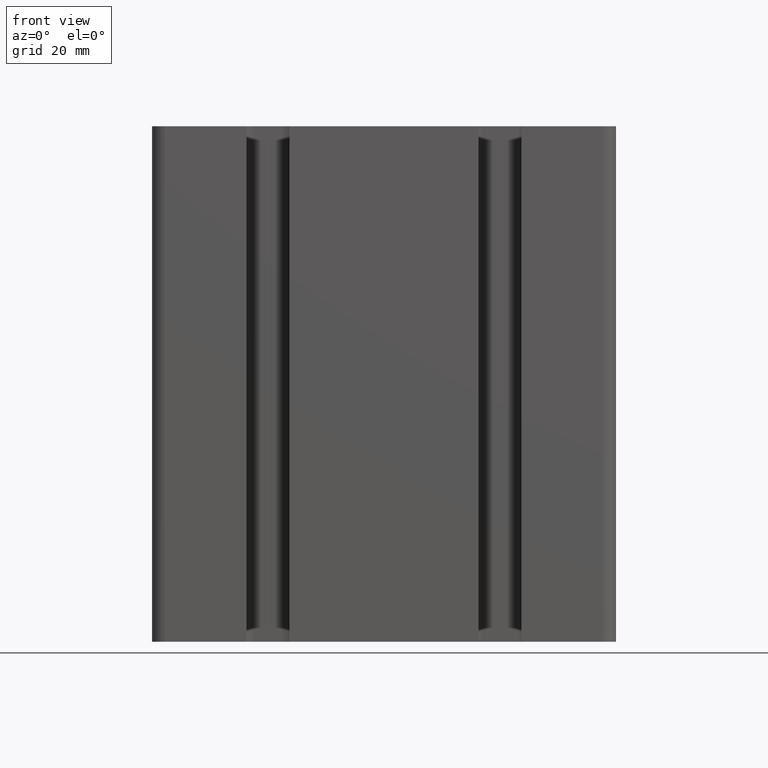
[diagram: clean part render]
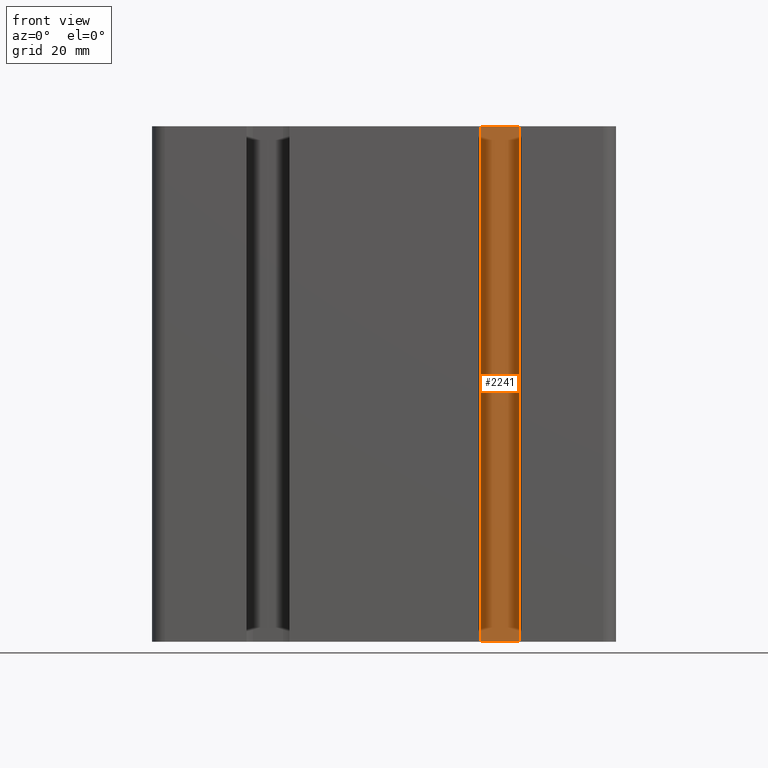
[diagram: same view with one face highlighted and labeled with its STEP entity id]
A machine part, front view. The second image highlights one B-rep face of the part: STEP entity #2241.
In plain terms, the highlighted planar face has unit normal (0, 1, 0).
Its self-contained STEP definition (entity closure, byte-faithful):
#59=PLANE('',#2421);
#155=FACE_OUTER_BOUND('',#270,.T.);
#270=EDGE_LOOP('',(#1707,#1708,#1709,#1710));
#457=LINE('',#3549,#691);
#458=LINE('',#3553,#692);
#459=LINE('',#3555,#693);
#460=LINE('',#3556,#694);
#691=VECTOR('',#2883,100.);
#692=VECTOR('',#2888,7.40000000000006);
#693=VECTOR('',#2889,100.);
#694=VECTOR('',#2890,7.40000000000006);
#1029=VERTEX_POINT('',#3546);
#1030=VERTEX_POINT('',#3548);
#1031=VERTEX_POINT('',#3552);
#1032=VERTEX_POINT('',#3554);
#1312=EDGE_CURVE('',#1030,#1029,#457,.T.);
#1314=EDGE_CURVE('',#1031,#1029,#458,.T.);
#1315=EDGE_CURVE('',#1032,#1031,#459,.T.);
#1316=EDGE_CURVE('',#1030,#1032,#460,.T.);
#1707=ORIENTED_EDGE('',*,*,#1314,.F.);
#1708=ORIENTED_EDGE('',*,*,#1315,.F.);
#1709=ORIENTED_EDGE('',*,*,#1316,.F.);
#1710=ORIENTED_EDGE('',*,*,#1312,.T.);
#2241=ADVANCED_FACE('',(#155),#59,.F.);
#2421=AXIS2_PLACEMENT_3D('',#3551,#2886,#2887);
#2883=DIRECTION('',(0.,0.,1.));
#2886=DIRECTION('center_axis',(2.04040988309487E-14,1.,0.));
#2887=DIRECTION('ref_axis',(-1.,2.04281036531029E-14,0.));
#2888=DIRECTION('',(1.,-2.04040988309487E-14,0.));
#2889=DIRECTION('',(0.,0.,1.));
#2890=DIRECTION('',(-1.,2.04040988309487E-14,0.));
#3546=CARTESIAN_POINT('',(26.1999999999998,-7.20000000000002,100.));
#3548=CARTESIAN_POINT('',(26.1999999999998,-7.20000000000002,0.));
#3549=CARTESIAN_POINT('',(26.1999999999998,-7.20000000000002,0.));
#3551=CARTESIAN_POINT('Origin',(26.1999999999998,-7.20000000000002,0.));
#3552=CARTESIAN_POINT('',(18.7999999999998,-7.19999999999986,100.));
#3553=CARTESIAN_POINT('',(13.0999999999998,-7.19999999999975,100.));
#3554=CARTESIAN_POINT('',(18.7999999999998,-7.19999999999986,0.));
#3555=CARTESIAN_POINT('',(18.7999999999998,-7.19999999999986,0.));
#3556=CARTESIAN_POINT('',(13.0999999999998,-7.19999999999975,0.));